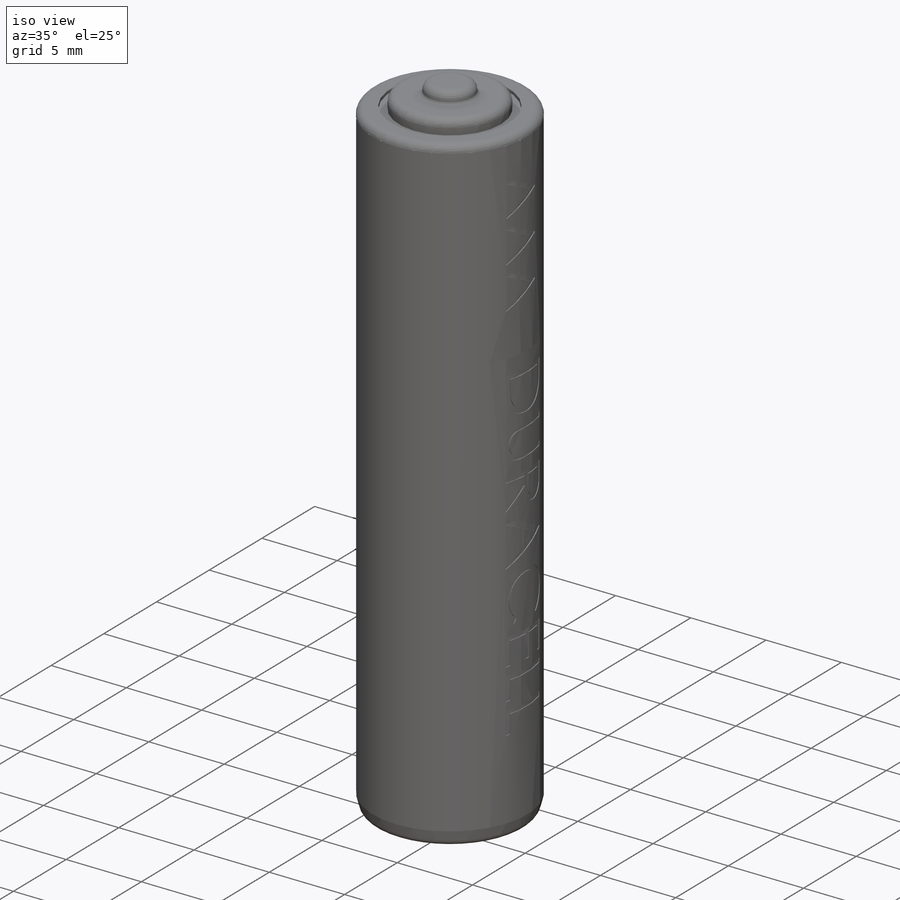
[diagram: iso view]
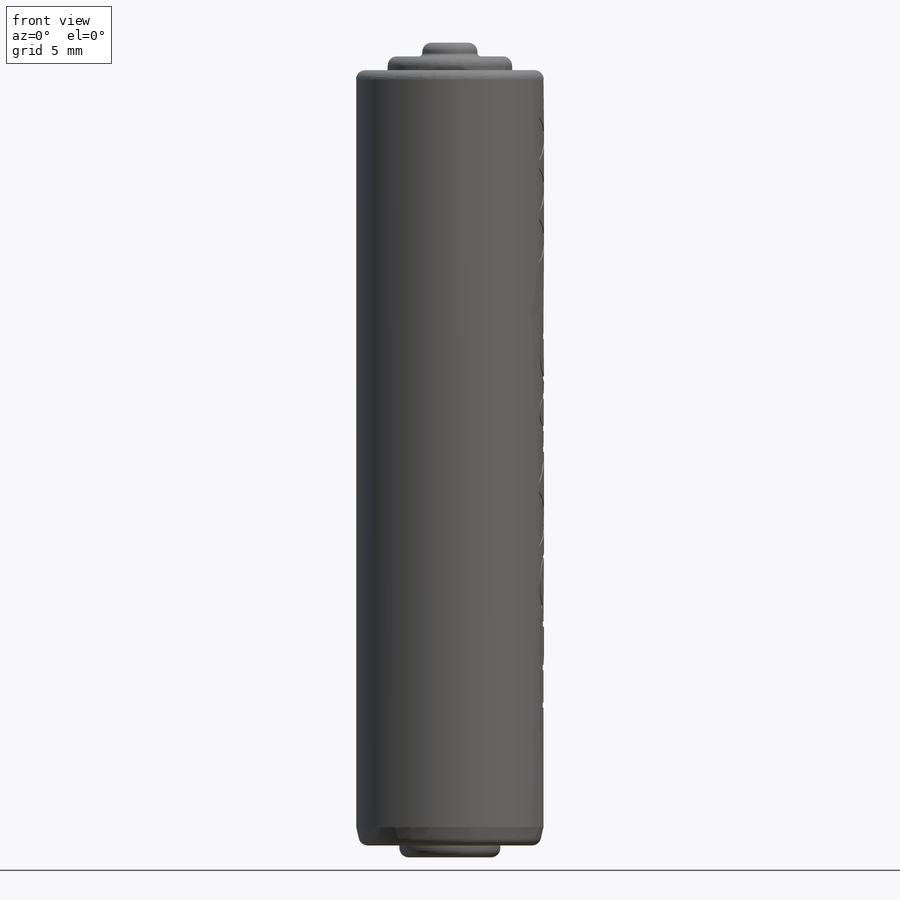
[diagram: front view]
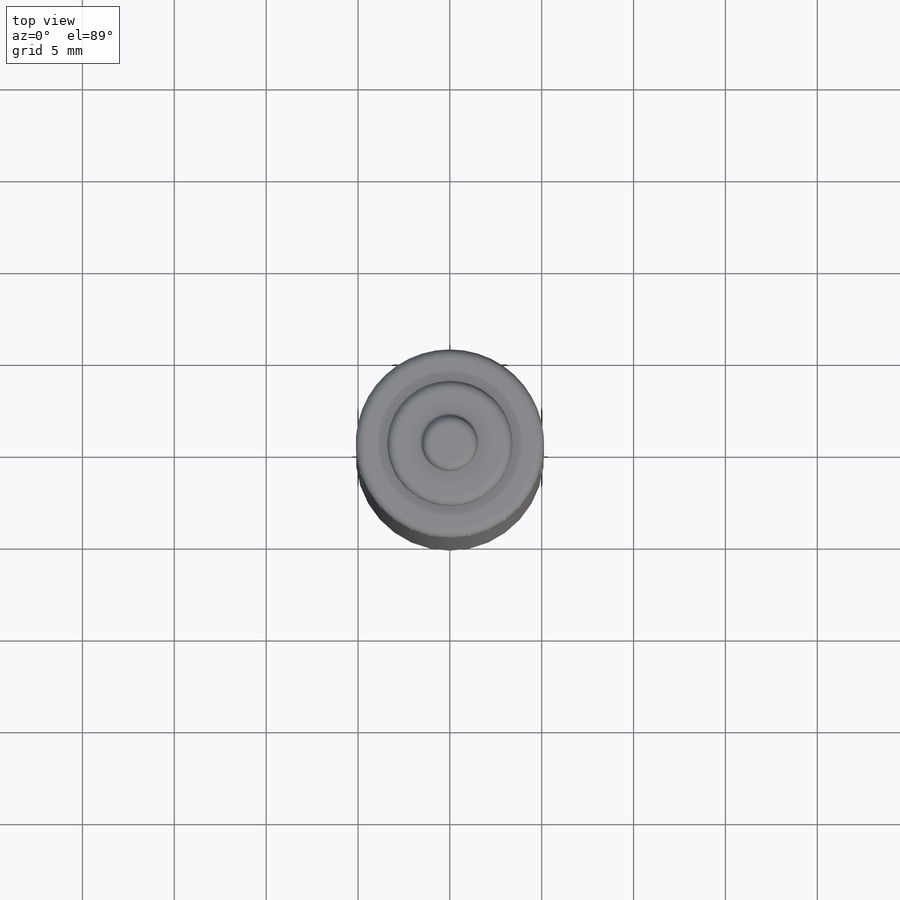
[diagram: top view]
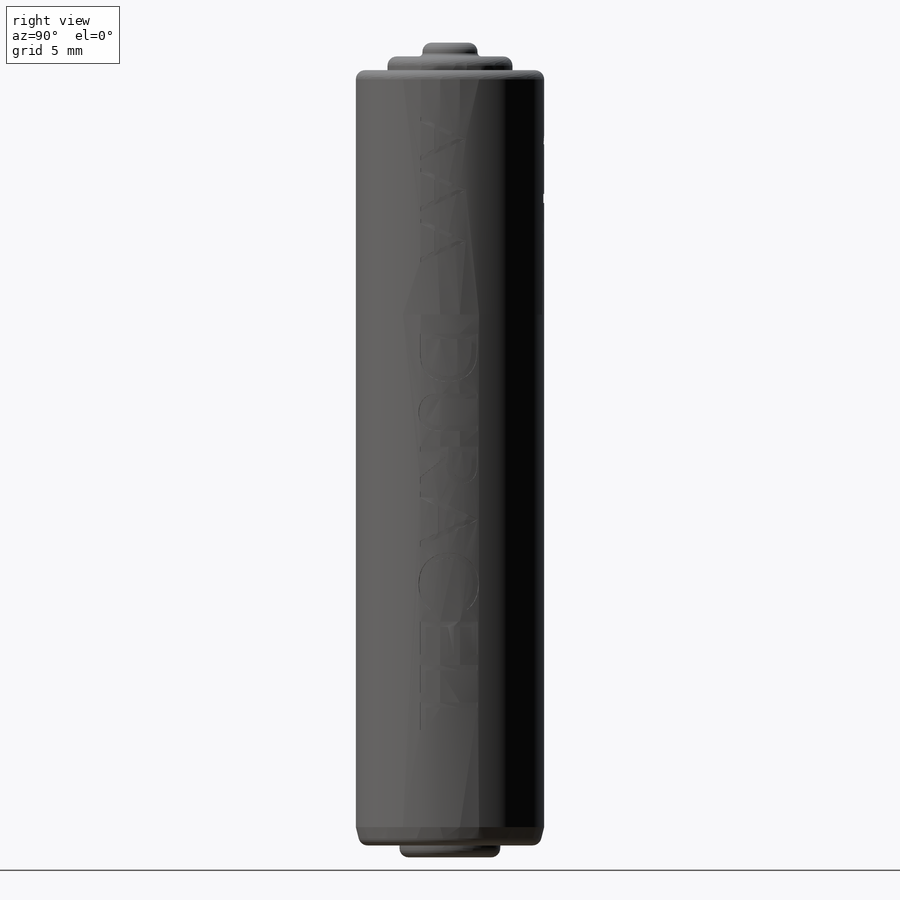
[diagram: right view]
SOLIDWORKS PART (.sldprt)
format: sldprt  version: not decoded by parser v0  size: 683,520 bytes
history: native  units: mm
features: sketch x10, extrude x5, fillet x3, cut_revolve x2, material x1, plane x1 (+11 scaffold rows collapsed)
feature tree (33):
  scaffold x11  (default folders/planes/origin — collapsed)
  material  "Material <not specified>"
  sketch  "Sketch1"  dims[D1=10.25mm]
  extrude  "Base"  Depth=42.2mm
  sketch  "Sketch7"  dims[c1.D1=7.8mm c2.D1=0.2mm c2.D5=0.5mm c2.D6=10.0mm c2.D7=5.0mm]
  sketch  "Sketch2"  dims[D1=3.0mm]
  extrude  "+ Terminal"  Depth=1.5mm
  sketch  "Sketch6"  dims[D1=0.0mm]
  extrude  "+ Step"  Depth=0.75mm
  sketch  "Sketch8"  dims[D1=1.0mm D2=0.25mm]
  cut_revolve  "- Drop Off"  Angle=360deg
  sketch  "Sketch3"  dims[D1=6.7mm]
  extrude  "- Rim"  Depth=0.5mm
  sketch  "Sketch9"  dims[D1=0.0mm]
  extrude  "- Terminal"  Depth=44.35mm
  fillet  "Outer Fillet"  Radius=0.5mm
  cut_revolve  "Inner Fillet"  [1 undecoded]
  plane  "Copper Plane"  Offset=13.3mm
  sketch  "Sketch5"  dims[D1=0.05mm]
  sketch  "Sketch10"
  fillet  "AAA Label"  Radius=0.05mm
  sketch  "Sketch11"  dims[D1=2.4mm D2=1.3mm D3=2.25mm D4=1.2mm D5=2.5mm D6=5.4mm D7=0.5mm]
  fillet  "+ Label"  Radius=0.05mm
decode coverage: 18 of 20 modeling features carry decoded parameters
note: 1 parameter value undecoded
note: suppression state not decoded; provenance and decode notes live in map.json
